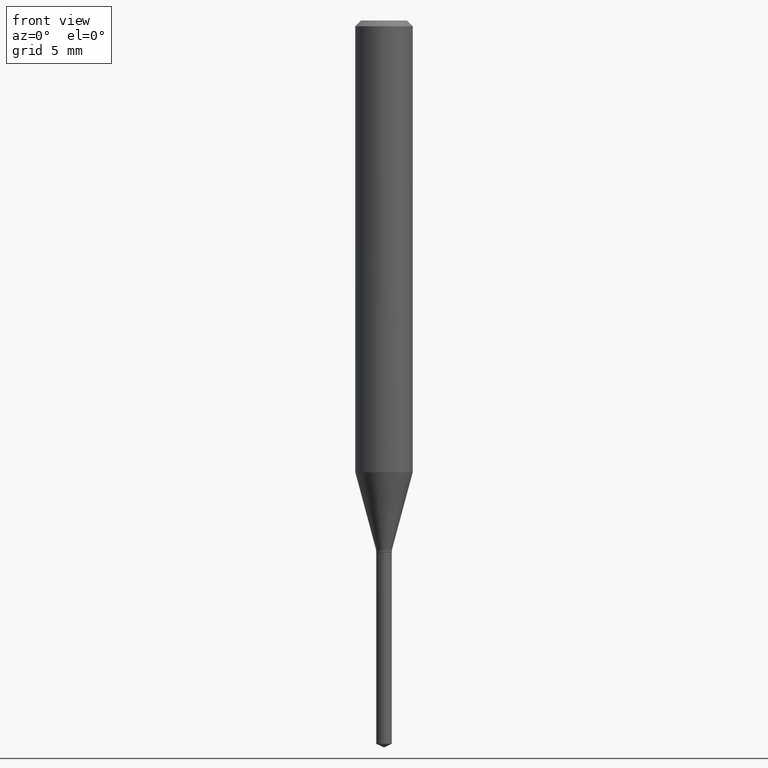
[diagram: clean part render]
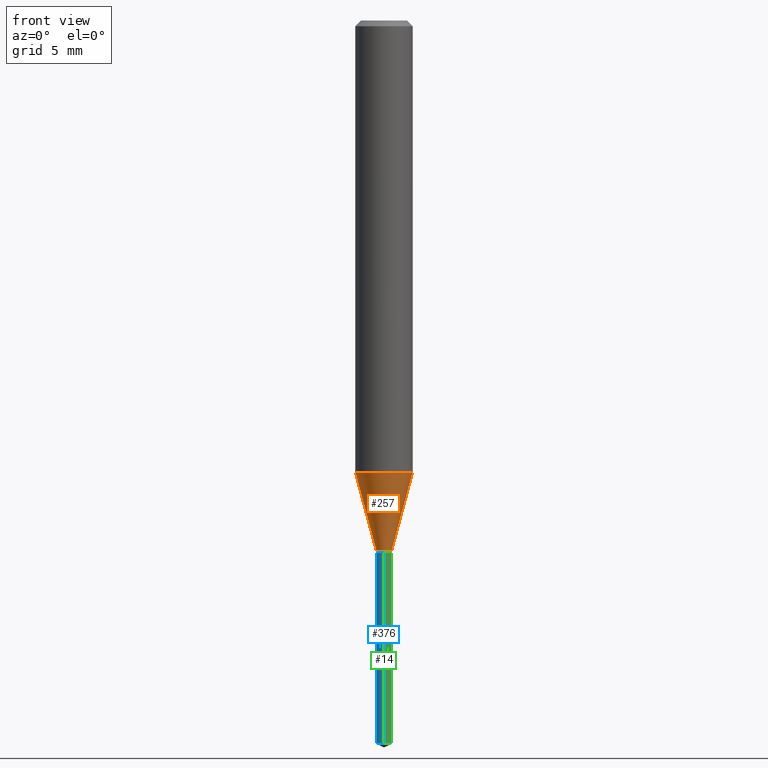
[diagram: same view with three faces highlighted in distinct colors, each labeled with its STEP entity id]
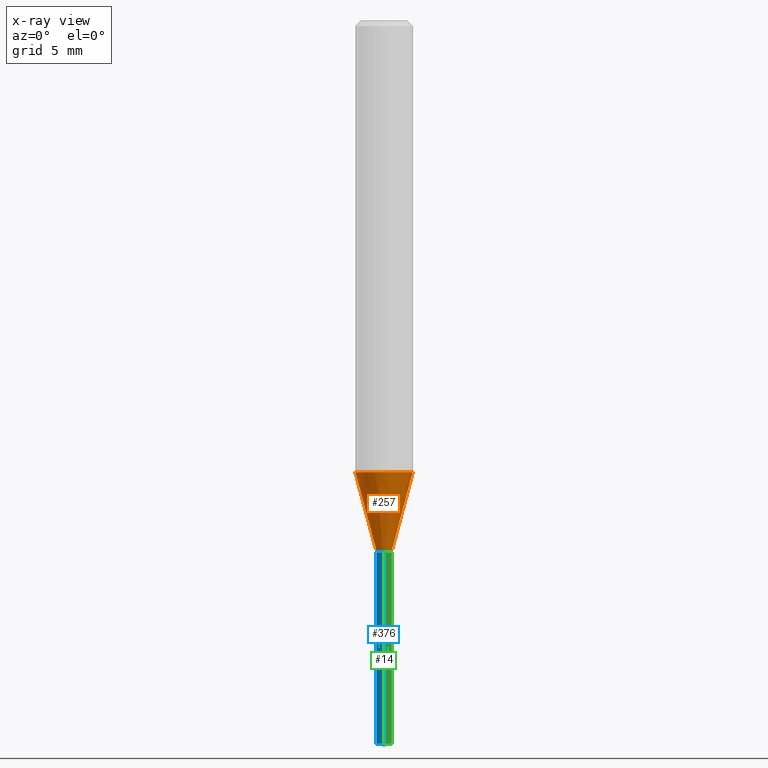
[diagram: x-ray of the same camera — body ghosted, the three highlighted faces saturated]
A machine part, front view with three faces highlighted in distinct colors.
The next image is the same camera in x-ray (body ghosted, the three faces saturated) — at least one of them is partly hidden behind the body in this view.
Their STEP definitions:

[orange] entity #257 — the highlighted conical surface has half-angle 15 deg.
#10 = CARTESIAN_POINT ( 'NONE',  ( -0.01615000000000000116, -3.697421247990632246E-15, -1.089699999999999891 ) ) ;
#16 = LINE ( 'NONE', #90, #66 ) ;
#38 = ORIENTED_EDGE ( 'NONE', *, *, #333, .T. ) ;
#66 = VECTOR ( 'NONE', #128, 39.37007874015747433 ) ;
#90 = CARTESIAN_POINT ( 'NONE',  ( -0.01615000000000000116, -3.689914563112119387E-15, -1.089699999999999891 ) ) ;
#91 = EDGE_CURVE ( 'NONE', #115, #285, #124, .T. ) ;
#110 = FACE_OUTER_BOUND ( 'NONE', #344, .T. ) ;
#115 = VERTEX_POINT ( 'NONE', #453 ) ;
#124 = CIRCLE ( 'NONE', #261, 0.05905000000000010935 ) ;
#128 = DIRECTION ( 'NONE',  ( -0.2588190451025213501, 5.211531920934551042E-15, 0.9659258262890682012 ) ) ;
#130 = EDGE_CURVE ( 'NONE', #159, #244, #315, .T. ) ;
#140 = DIRECTION ( 'NONE',  ( 1.000000000000000000, -6.982962677686274599E-15, 0.000000000000000000 ) ) ;
#145 = AXIS2_PLACEMENT_3D ( 'NONE', #416, #457, #267 ) ;
#147 = CARTESIAN_POINT ( 'NONE',  ( 0.01615000000000000116, -3.917442062182008625E-15, -1.089699999999999891 ) ) ;
#151 = CARTESIAN_POINT ( 'NONE',  ( 2.273295624663911029E-29, -3.245663666252026879E-15, -0.9295950203552949542 ) ) ;
#159 = VERTEX_POINT ( 'NONE', #10 ) ;
#195 = ORIENTED_EDGE ( 'NONE', *, *, #408, .F. ) ;
#206 = DIRECTION ( 'NONE',  ( 0.2588190451025213501, 1.565188264969621968E-15, 0.9659258262890682012 ) ) ;
#244 = VERTEX_POINT ( 'NONE', #147 ) ;
#257 = ADVANCED_FACE ( 'NONE', ( #110 ), #366, .T. ) ;
#261 = AXIS2_PLACEMENT_3D ( 'NONE', #151, #305, #269 ) ;
#265 = DIRECTION ( 'NONE',  ( -2.445468806185136597E-29, 3.491481338843145583E-15, 1.000000000000000000 ) ) ;
#267 = DIRECTION ( 'NONE',  ( 1.000000000000000000, -6.982962677686274599E-15, 0.000000000000000000 ) ) ;
#269 = DIRECTION ( 'NONE',  ( 1.000000000000000000, -6.982962677686267499E-15, 0.000000000000000000 ) ) ;
#274 = VECTOR ( 'NONE', #206, 39.37007874015747433 ) ;
#281 = LINE ( 'NONE', #323, #274 ) ;
#285 = VERTEX_POINT ( 'NONE', #410 ) ;
#295 = AXIS2_PLACEMENT_3D ( 'NONE', #490, #265, #140 ) ;
#305 = DIRECTION ( 'NONE',  ( -2.445468806185136597E-29, 3.491481338843145583E-15, 1.000000000000000000 ) ) ;
#315 = CIRCLE ( 'NONE', #295, 0.01615000000000000116 ) ;
#317 = ORIENTED_EDGE ( 'NONE', *, *, #130, .T. ) ;
#323 = CARTESIAN_POINT ( 'NONE',  ( 0.01615000000000000116, -3.917442062182008625E-15, -1.089699999999999891 ) ) ;
#333 = EDGE_CURVE ( 'NONE', #244, #285, #281, .T. ) ;
#344 = EDGE_LOOP ( 'NONE', ( #195, #317, #38, #436 ) ) ;
#366 = CONICAL_SURFACE ( 'NONE', #145, 0.01615000000000000116, 0.2617993877991500740 ) ;
#408 = EDGE_CURVE ( 'NONE', #159, #115, #16, .T. ) ;
#410 = CARTESIAN_POINT ( 'NONE',  ( 0.05905000000000010935, -3.658007612369401404E-15, -0.9295950203552949542 ) ) ;
#416 = CARTESIAN_POINT ( 'NONE',  ( 2.664827358099943030E-29, -3.804667214937374761E-15, -1.089699999999999891 ) ) ;
#436 = ORIENTED_EDGE ( 'NONE', *, *, #91, .F. ) ;
#453 = CARTESIAN_POINT ( 'NONE',  ( -0.05905000000000010935, -2.826088180785686597E-15, -0.9295950203552949542 ) ) ;
#457 = DIRECTION ( 'NONE',  ( -2.445468806185136597E-29, 3.491481338843145583E-15, 1.000000000000000000 ) ) ;
#490 = CARTESIAN_POINT ( 'NONE',  ( 2.664827358099943030E-29, -3.804667214937374761E-15, -1.089699999999999891 ) ) ;

[blue] entity #376 — the highlighted cylindrical surface (edge-blend (fillet) strip) has radius 0.4102 mm, axis along (-0, 0, 1).
#8 = LINE ( 'NONE', #302, #411 ) ;
#11 = VERTEX_POINT ( 'NONE', #79 ) ;
#15 = ORIENTED_EDGE ( 'NONE', *, *, #201, .F. ) ;
#32 = VERTEX_POINT ( 'NONE', #183 ) ;
#39 = DIRECTION ( 'NONE',  ( -2.445470214571802396E-29, 3.491479321953280158E-15, 1.000000000000000000 ) ) ;
#40 = VERTEX_POINT ( 'NONE', #76 ) ;
#46 = DIRECTION ( 'NONE',  ( -2.445470214571802116E-29, 3.491479321953280158E-15, 1.000000000000000000 ) ) ;
#47 = ORIENTED_EDGE ( 'NONE', *, *, #59, .T. ) ;
#59 = EDGE_CURVE ( 'NONE', #11, #40, #8, .T. ) ;
#71 = VECTOR ( 'NONE', #39, 39.37007874015748143 ) ;
#76 = CARTESIAN_POINT ( 'NONE',  ( -1.127748472446064261E-16, -0.01615000000000382102, -1.094499999999999806 ) ) ;
#77 = EDGE_LOOP ( 'NONE', ( #205, #228, #47, #15 ) ) ;
#79 = CARTESIAN_POINT ( 'NONE',  ( -1.127748472445968119E-16, -0.01615000000000519839, -1.488569131320796934 ) ) ;
#82 = CARTESIAN_POINT ( 'NONE',  ( 1.147526518252926484E-16, 0.01614999999999618130, -1.094499999999999806 ) ) ;
#108 = CARTESIAN_POINT ( 'NONE',  ( 3.640249931496824443E-29, -5.197310548790477379E-15, -1.488569131320796934 ) ) ;
#136 = EDGE_CURVE ( 'NONE', #32, #11, #476, .T. ) ;
#137 = AXIS2_PLACEMENT_3D ( 'NONE', #238, #46, #194 ) ;
#149 = EDGE_CURVE ( 'NONE', #32, #246, #379, .T. ) ;
#154 = DIRECTION ( 'NONE',  ( -2.445470214571802396E-29, 3.491479321953280158E-15, 1.000000000000000000 ) ) ;
#179 = CIRCLE ( 'NONE', #137, 0.01615000000000000116 ) ;
#183 = CARTESIAN_POINT ( 'NONE',  ( 1.147526518252925498E-16, 0.01614999999999480393, -1.488569131320796934 ) ) ;
#194 = DIRECTION ( 'NONE',  ( -6.982962677686265922E-15, -1.000000000000000000, 0.000000000000000000 ) ) ;
#201 = EDGE_CURVE ( 'NONE', #246, #40, #179, .T. ) ;
#205 = ORIENTED_EDGE ( 'NONE', *, *, #149, .F. ) ;
#228 = ORIENTED_EDGE ( 'NONE', *, *, #136, .T. ) ;
#230 = DIRECTION ( 'NONE',  ( -6.982962677686265922E-15, -1.000000000000000000, 0.000000000000000000 ) ) ;
#238 = CARTESIAN_POINT ( 'NONE',  ( 2.676565608369631794E-29, -3.821426325363822773E-15, -1.094499999999999806 ) ) ;
#246 = VERTEX_POINT ( 'NONE', #82 ) ;
#271 = CARTESIAN_POINT ( 'NONE',  ( 1.147526518252829356E-16, 0.01614999999999617783, -1.094499999999999806 ) ) ;
#276 = DIRECTION ( 'NONE',  ( -6.982962677686265922E-15, -1.000000000000000000, 0.000000000000000000 ) ) ;
#284 = FACE_OUTER_BOUND ( 'NONE', #77, .T. ) ;
#302 = CARTESIAN_POINT ( 'NONE',  ( -1.127748472446064261E-16, -0.01615000000000382102, -1.094499999999999806 ) ) ;
#355 = CYLINDRICAL_SURFACE ( 'NONE', #445, 0.01615000000000000116 ) ;
#376 = ADVANCED_FACE ( 'NONE', ( #284 ), #355, .T. ) ;
#379 = LINE ( 'NONE', #271, #71 ) ;
#395 = DIRECTION ( 'NONE',  ( -2.445470214571802116E-29, 3.491479321953280158E-15, 1.000000000000000000 ) ) ;
#397 = AXIS2_PLACEMENT_3D ( 'NONE', #108, #417, #230 ) ;
#411 = VECTOR ( 'NONE', #154, 39.37007874015748143 ) ;
#417 = DIRECTION ( 'NONE',  ( -2.445470214571802116E-29, 3.491479321953280158E-15, 1.000000000000000000 ) ) ;
#430 = CARTESIAN_POINT ( 'NONE',  ( 2.676565608369631794E-29, -3.821426325363822773E-15, -1.094499999999999806 ) ) ;
#445 = AXIS2_PLACEMENT_3D ( 'NONE', #430, #395, #276 ) ;
#476 = CIRCLE ( 'NONE', #397, 0.01615000000000000116 ) ;

[green] entity #14 — the highlighted cylindrical surface (edge-blend (fillet) strip) has radius 0.4102 mm, axis along (-0, 0, 1).
#3 = AXIS2_PLACEMENT_3D ( 'NONE', #360, #94, #160 ) ;
#8 = LINE ( 'NONE', #302, #411 ) ;
#11 = VERTEX_POINT ( 'NONE', #79 ) ;
#14 = ADVANCED_FACE ( 'NONE', ( #105 ), #460, .T. ) ;
#32 = VERTEX_POINT ( 'NONE', #183 ) ;
#39 = DIRECTION ( 'NONE',  ( -2.445470214571802396E-29, 3.491479321953280158E-15, 1.000000000000000000 ) ) ;
#40 = VERTEX_POINT ( 'NONE', #76 ) ;
#43 = CARTESIAN_POINT ( 'NONE',  ( 2.676565608369631794E-29, -3.821426325363822773E-15, -1.094499999999999806 ) ) ;
#44 = ORIENTED_EDGE ( 'NONE', *, *, #149, .T. ) ;
#59 = EDGE_CURVE ( 'NONE', #11, #40, #8, .T. ) ;
#71 = VECTOR ( 'NONE', #39, 39.37007874015748143 ) ;
#76 = CARTESIAN_POINT ( 'NONE',  ( -1.127748472446064261E-16, -0.01615000000000382102, -1.094499999999999806 ) ) ;
#79 = CARTESIAN_POINT ( 'NONE',  ( -1.127748472445968119E-16, -0.01615000000000519839, -1.488569131320796934 ) ) ;
#82 = CARTESIAN_POINT ( 'NONE',  ( 1.147526518252926484E-16, 0.01614999999999618130, -1.094499999999999806 ) ) ;
#94 = DIRECTION ( 'NONE',  ( -2.445470214571802116E-29, 3.491479321953280158E-15, 1.000000000000000000 ) ) ;
#105 = FACE_OUTER_BOUND ( 'NONE', #431, .T. ) ;
#127 = ORIENTED_EDGE ( 'NONE', *, *, #326, .F. ) ;
#143 = DIRECTION ( 'NONE',  ( -2.445470214571802116E-29, 3.491479321953280158E-15, 1.000000000000000000 ) ) ;
#149 = EDGE_CURVE ( 'NONE', #32, #246, #379, .T. ) ;
#154 = DIRECTION ( 'NONE',  ( -2.445470214571802396E-29, 3.491479321953280158E-15, 1.000000000000000000 ) ) ;
#156 = AXIS2_PLACEMENT_3D ( 'NONE', #439, #143, #186 ) ;
#160 = DIRECTION ( 'NONE',  ( -6.982962677686265922E-15, -1.000000000000000000, 0.000000000000000000 ) ) ;
#183 = CARTESIAN_POINT ( 'NONE',  ( 1.147526518252925498E-16, 0.01614999999999480393, -1.488569131320796934 ) ) ;
#185 = ORIENTED_EDGE ( 'NONE', *, *, #220, .T. ) ;
#186 = DIRECTION ( 'NONE',  ( -6.982962677686265922E-15, -1.000000000000000000, 0.000000000000000000 ) ) ;
#220 = EDGE_CURVE ( 'NONE', #11, #32, #272, .T. ) ;
#246 = VERTEX_POINT ( 'NONE', #82 ) ;
#271 = CARTESIAN_POINT ( 'NONE',  ( 1.147526518252829356E-16, 0.01614999999999617783, -1.094499999999999806 ) ) ;
#272 = CIRCLE ( 'NONE', #156, 0.01615000000000000116 ) ;
#302 = CARTESIAN_POINT ( 'NONE',  ( -1.127748472446064261E-16, -0.01615000000000382102, -1.094499999999999806 ) ) ;
#319 = ORIENTED_EDGE ( 'NONE', *, *, #59, .F. ) ;
#326 = EDGE_CURVE ( 'NONE', #40, #246, #353, .T. ) ;
#345 = DIRECTION ( 'NONE',  ( -2.445470214571802116E-29, 3.491479321953280158E-15, 1.000000000000000000 ) ) ;
#353 = CIRCLE ( 'NONE', #3, 0.01615000000000000116 ) ;
#360 = CARTESIAN_POINT ( 'NONE',  ( 2.676565608369631794E-29, -3.821426325363822773E-15, -1.094499999999999806 ) ) ;
#379 = LINE ( 'NONE', #271, #71 ) ;
#411 = VECTOR ( 'NONE', #154, 39.37007874015748143 ) ;
#421 = DIRECTION ( 'NONE',  ( -6.982962677686265922E-15, -1.000000000000000000, 0.000000000000000000 ) ) ;
#431 = EDGE_LOOP ( 'NONE', ( #185, #44, #127, #319 ) ) ;
#439 = CARTESIAN_POINT ( 'NONE',  ( 3.640249931496824443E-29, -5.197310548790477379E-15, -1.488569131320796934 ) ) ;
#444 = AXIS2_PLACEMENT_3D ( 'NONE', #43, #345, #421 ) ;
#460 = CYLINDRICAL_SURFACE ( 'NONE', #444, 0.01615000000000000116 ) ;